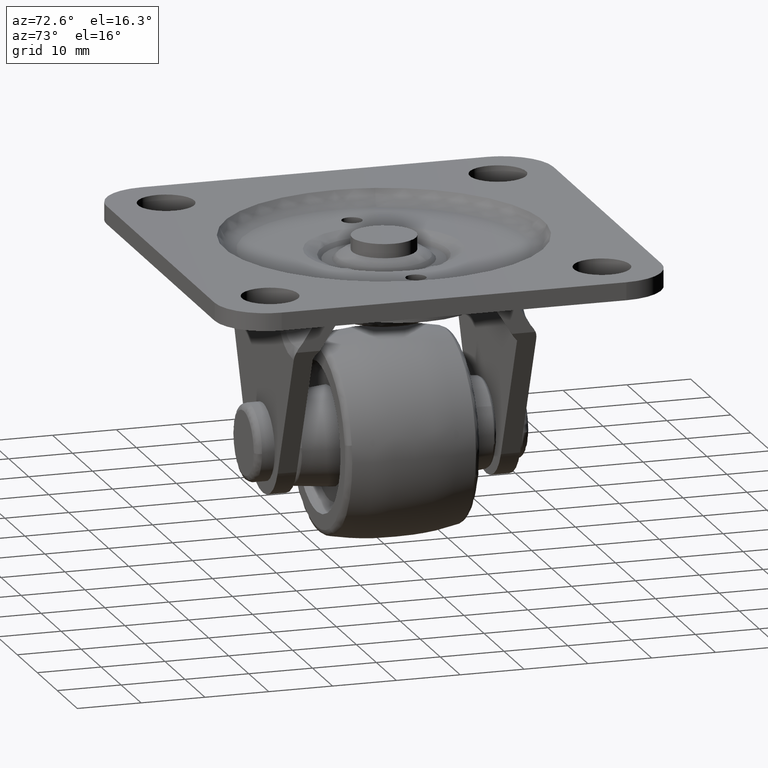
[diagram: clean part render]
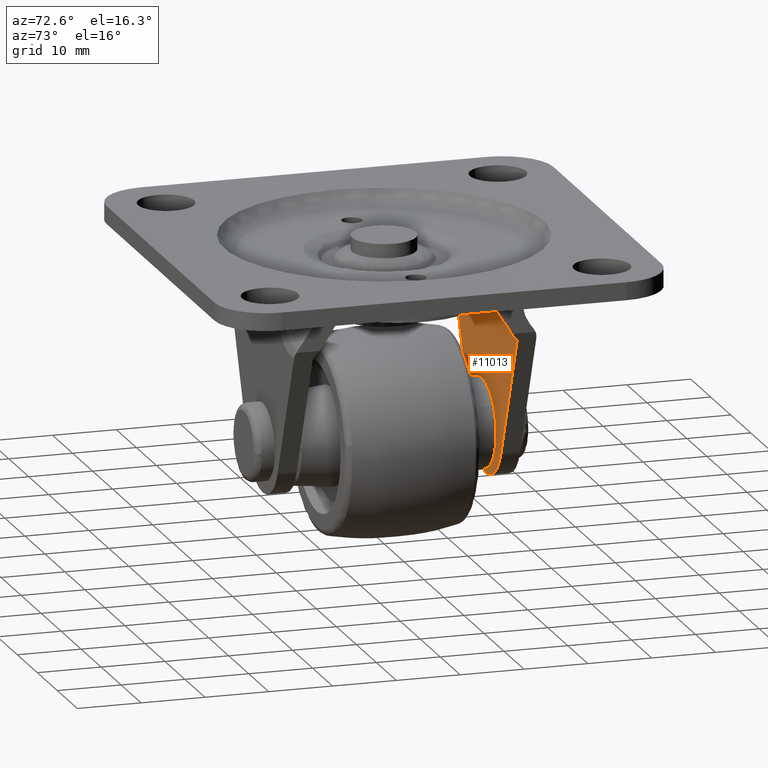
[diagram: same view with one face highlighted and labeled with its STEP entity id]
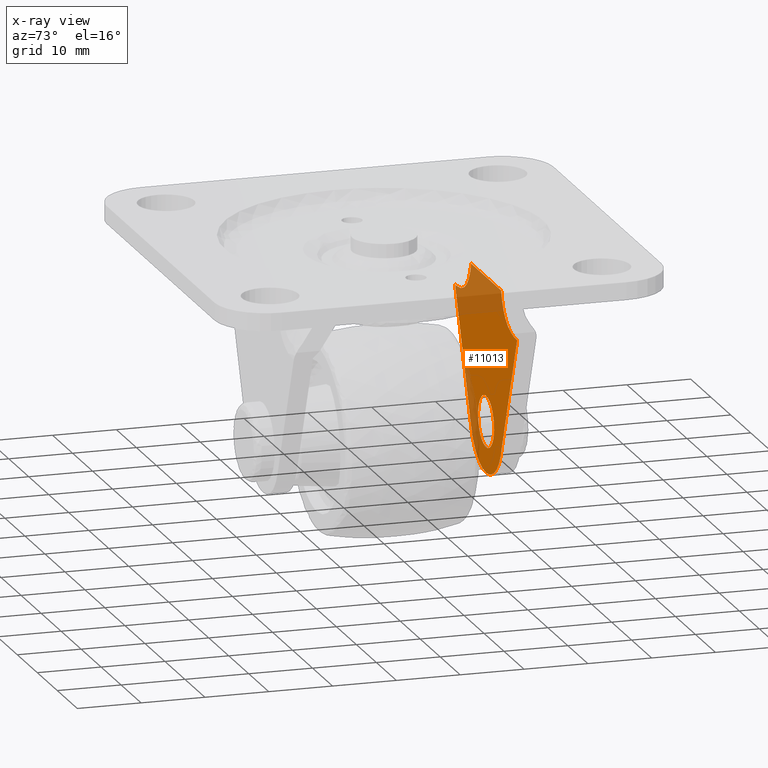
[diagram: x-ray of the same camera — body ghosted, the highlighted face saturated]
A machine part, auxiliary view. The second image highlights one B-rep face of the part: STEP entity #11013.
The next image is the same camera in x-ray: the body ghosted, the highlighted face saturated — about 29% of this face is hidden behind the body in this view.
In plain terms, the highlighted face is a freeform B-spline surface patch.
Its self-contained STEP definition (entity closure, byte-faithful):
#7461=CARTESIAN_POINT('',(-3.972038105444410,16.0,0.472136938713309));
#7462=VERTEX_POINT('',#7461);
#7463=CARTESIAN_POINT('',(0.0,16.0,-4.0));
#7464=VERTEX_POINT('',#7463);
#7465=CARTESIAN_POINT('',(-3.972038105444410,15.999999999999996,0.472136938713309));
#7466=CARTESIAN_POINT('',(-4.000000000000001,16.000000000000004,0.236896478694827));
#7467=CARTESIAN_POINT('',(-4.0,16.0,0.0));
#7468=CARTESIAN_POINT('',(-4.000000000000000,15.999999999999998,-4.000000000000000));
#7469=CARTESIAN_POINT('',(0.0,16.0,-4.0));
#7477=(BOUNDED_CURVE()B_SPLINE_CURVE(2,(#7465,#7466,#7467,#7468,#7469),.UNSPECIFIED.,.F.,.U.)B_SPLINE_CURVE_WITH_KNOTS((3,2,3),(0.229562473508303,0.250000000000000,0.500000000000000),.UNSPECIFIED.)CURVE()GEOMETRIC_REPRESENTATION_ITEM()RATIONAL_B_SPLINE_CURVE((0.956026754173496,0.976055948325046,1.0,0.707106781186548,1.0))REPRESENTATION_ITEM(''));
#7478=EDGE_CURVE('',#7462,#7464,#7477,.T.);
#7480=CARTESIAN_POINT('',(3.992539193682481,16.0,-0.244194158220941));
#7481=VERTEX_POINT('',#7480);
#7482=CARTESIAN_POINT('',(0.0,16.0,-4.0));
#7483=CARTESIAN_POINT('',(3.762824267468871,16.0,-4.0));
#7484=CARTESIAN_POINT('',(3.992539193682481,16.000000000000004,-0.244194158220941));
#7492=(BOUNDED_CURVE()B_SPLINE_CURVE(2,(#7482,#7483,#7484),.UNSPECIFIED.,.F.,.U.)B_SPLINE_CURVE_WITH_KNOTS((3,3),(0.500000000000000,0.739332962234924),.UNSPECIFIED.)CURVE()GEOMETRIC_REPRESENTATION_ITEM()RATIONAL_B_SPLINE_CURVE((1.0,0.719603993291419,0.976072041658104))REPRESENTATION_ITEM(''));
#7493=EDGE_CURVE('',#7464,#7481,#7492,.T.);
#7560=CARTESIAN_POINT('',(0.0,16.0,4.0));
#7561=VERTEX_POINT('',#7560);
#7562=CARTESIAN_POINT('',(0.0,16.0,4.0));
#7563=CARTESIAN_POINT('',(-3.552698103650050,15.999999999999995,4.0));
#7564=CARTESIAN_POINT('',(-3.972038105444411,15.999999999999998,0.472136938713309));
#7572=(BOUNDED_CURVE()B_SPLINE_CURVE(2,(#7562,#7563,#7564),.UNSPECIFIED.,.F.,.U.)B_SPLINE_CURVE_WITH_KNOTS((3,3),(0.0,0.229562473508303),.UNSPECIFIED.)CURVE()GEOMETRIC_REPRESENTATION_ITEM()RATIONAL_B_SPLINE_CURVE((1.0,0.731050832861502,0.956026754173496))REPRESENTATION_ITEM(''));
#7573=EDGE_CURVE('',#7561,#7462,#7572,.T.);
#7607=CARTESIAN_POINT('',(3.992539193682482,16.000000000000004,-0.244194158220941));
#7608=CARTESIAN_POINT('',(4.0,16.0,-0.122211053276097));
#7609=CARTESIAN_POINT('',(4.0,16.0,0.0));
#7610=CARTESIAN_POINT('',(4.000000000000000,15.999999999999998,4.000000000000000));
#7611=CARTESIAN_POINT('',(0.0,16.0,4.0));
#7619=(BOUNDED_CURVE()B_SPLINE_CURVE(2,(#7607,#7608,#7609,#7610,#7611),.UNSPECIFIED.,.F.,.U.)B_SPLINE_CURVE_WITH_KNOTS((3,2,3),(0.739332962234923,0.750000000000000,1.0),.UNSPECIFIED.)CURVE()GEOMETRIC_REPRESENTATION_ITEM()RATIONAL_B_SPLINE_CURVE((0.976072041658102,0.987502787895127,1.0,0.707106781186548,1.0))REPRESENTATION_ITEM(''));
#7620=EDGE_CURVE('',#7481,#7561,#7619,.T.);
#10332=CARTESIAN_POINT('',(15.504527354796251,16.0,16.976298295117900));
#10333=VERTEX_POINT('',#10332);
#10334=CARTESIAN_POINT('',(15.092947164662750,16.0,16.976298295117850));
#10335=VERTEX_POINT('',#10334);
#10336=CARTESIAN_POINT('',(15.504527354796251,16.0,16.976298295117900));
#10337=CARTESIAN_POINT('',(15.092947164662750,16.0,16.976298295117850));
#10338=QUASI_UNIFORM_CURVE('',1,(#10336,#10337),.UNSPECIFIED.,.F.,.U.);
#10339=EDGE_CURVE('',#10333,#10335,#10338,.T.);
#10392=CARTESIAN_POINT('',(7.486135151087449,16.0,22.500000000000000));
#10393=VERTEX_POINT('',#10392);
#10394=CARTESIAN_POINT('',(7.486135151087460,16.0,22.500000000000000));
#10395=CARTESIAN_POINT('',(7.535507063158343,16.0,22.291409247580180));
#10396=CARTESIAN_POINT('',(7.592496235097788,16.0,22.083097732946651));
#10397=CARTESIAN_POINT('',(7.721240407702836,16.0,21.674191497534832));
#10398=CARTESIAN_POINT('',(7.793058966299413,16.0,21.473118880234068));
#10399=CARTESIAN_POINT('',(8.032442065880206,16.0,20.880763442455660));
#10400=CARTESIAN_POINT('',(8.223758179453224,16.0,20.500263204332281));
#10401=CARTESIAN_POINT('',(8.510012810590409,16.0,20.046024362027669));
#10402=CARTESIAN_POINT('',(8.569816991512719,16.0,19.955995341174841));
#10403=CARTESIAN_POINT('',(8.693445748394572,16.0,19.779557265771320));
#10404=CARTESIAN_POINT('',(8.884589820889168,16.000000000000011,19.520709924267059));
#10405=CARTESIAN_POINT('',(9.092793510712905,16.0,19.279247878775760));
#10406=CARTESIAN_POINT('',(9.531977570891108,16.0,18.819535289292869));
#10407=CARTESIAN_POINT('',(9.855089449141982,16.0,18.543961609874330));
#10408=CARTESIAN_POINT('',(10.297715559355920,16.0,18.238970272294580));
#10409=CARTESIAN_POINT('',(10.388396168379160,16.0,18.179830992370199));
#10410=CARTESIAN_POINT('',(10.571590200783220,15.999999999999989,18.066772917114431));
#10411=CARTESIAN_POINT('',(10.664296113535251,16.0,18.012706298179420));
#10412=CARTESIAN_POINT('',(10.945602361511741,16.0,17.857586854725611));
#10413=CARTESIAN_POINT('',(11.137387581430410,16.0,17.763606393815120));
#10414=CARTESIAN_POINT('',(11.528815900141030,16.0,17.593094699177389));
#10415=CARTESIAN_POINT('',(11.728459909707590,16.0,17.516565487918701));
#10416=CARTESIAN_POINT('',(12.135075786006761,16.0,17.379779324940941));
#10417=CARTESIAN_POINT('',(12.342738441710670,16.0,17.319391694516341));
#10418=CARTESIAN_POINT('',(12.967371592124289,16.0,17.163071728236289));
#10419=CARTESIAN_POINT('',(13.387957872646220,16.0,17.090885439871968));
#10420=CARTESIAN_POINT('',(14.235754410652440,16.000000000000011,16.997458366603450));
#10421=CARTESIAN_POINT('',(14.662975162562910,16.0,16.976298295117850));
#10422=CARTESIAN_POINT('',(15.092947164662750,16.0,16.976298295117850));
#10423=B_SPLINE_CURVE_WITH_KNOTS('',3,(#10394,#10395,#10396,#10397,#10398,#10399,#10400,#10401,#10402,#10403,#10404,#10405,#10406,#10407,#10408,#10409,#10410,#10411,#10412,#10413,#10414,#10415,#10416,#10417,#10418,#10419,#10420,#10421,#10422),.UNSPECIFIED.,.F.,.U.,(4,2,2,2,2,1,2,2,2,2,2,2,2,2,4),(0.0,0.062500000000000,0.125000000000001,0.250000000000002,0.281250000000002,0.312500000000001,0.375000000000001,0.500000000000000,0.531250000000000,0.562500000000000,0.625000000000000,0.687500000000000,0.750000000000000,0.875000000000000,1.0),.UNSPECIFIED.);
#10424=EDGE_CURVE('',#10393,#10335,#10423,.T.);
#10483=CARTESIAN_POINT('',(-15.504527354796149,16.0,16.976298295117900));
#10484=VERTEX_POINT('',#10483);
#10498=CARTESIAN_POINT('',(-15.092947164662750,16.0,16.976298295117850));
#10499=VERTEX_POINT('',#10498);
#10500=CARTESIAN_POINT('',(-15.092947164662750,16.0,16.976298295117850));
#10501=CARTESIAN_POINT('',(-15.504527354796149,16.0,16.976298295117900));
#10502=QUASI_UNIFORM_CURVE('',1,(#10500,#10501),.UNSPECIFIED.,.F.,.U.);
#10503=EDGE_CURVE('',#10499,#10484,#10502,.T.);
#10542=CARTESIAN_POINT('',(-7.486135151087480,16.0,22.500000000000000));
#10543=VERTEX_POINT('',#10542);
#10544=CARTESIAN_POINT('',(-15.092947164662750,16.0,16.976298295117850));
#10545=CARTESIAN_POINT('',(-14.662696417204570,16.000000000000011,16.976298295117850));
#10546=CARTESIAN_POINT('',(-14.235063167835619,16.0,16.997482981117209));
#10547=CARTESIAN_POINT('',(-13.386133352393021,16.0,17.091138215153329));
#10548=CARTESIAN_POINT('',(-12.964826441223140,16.0,17.163525035291340));
#10549=CARTESIAN_POINT('',(-12.443171585246111,16.0,17.294304274388580));
#10550=CARTESIAN_POINT('',(-12.338904736234600,16.0,17.322550903486370));
#10551=CARTESIAN_POINT('',(-12.132570013533179,16.0,17.382867914714051));
#10552=CARTESIAN_POINT('',(-12.030352531512190,16.0,17.414968229348819));
#10553=CARTESIAN_POINT('',(-11.726631790287390,16.0,17.517262367044491));
#10554=CARTESIAN_POINT('',(-11.528057596085530,16.0,17.593443987360970));
#10555=CARTESIAN_POINT('',(-10.944796685973150,16.0,17.847463861089349));
#10556=CARTESIAN_POINT('',(-10.572509178891609,16.0,18.050649434737650));
#10557=CARTESIAN_POINT('',(-10.131080394222010,16.0,18.353551987723311));
#10558=CARTESIAN_POINT('',(-10.043996054410551,16.0,18.416588518294009));
#10559=CARTESIAN_POINT('',(-9.915248954381026,16.0,18.514985333416458));
#10560=CARTESIAN_POINT('',(-9.872615821171159,16.0,18.548452818821929));
#10561=CARTESIAN_POINT('',(-9.788565833060842,16.0,18.616220090490991));
#10562=CARTESIAN_POINT('',(-9.581126927932015,16.000000000000011,18.787984174637710));
#10563=CARTESIAN_POINT('',(-9.386982736750266,16.0,18.971359345586450));
#10564=CARTESIAN_POINT('',(-8.945759325101138,16.0,19.433051555702608));
#10565=CARTESIAN_POINT('',(-8.684513054467724,16.0,19.769582276910121));
#10566=CARTESIAN_POINT('',(-8.397365194546195,16.0,20.224664822866242));
#10567=CARTESIAN_POINT('',(-8.341771524939754,16.0,20.317666483050310));
#10568=CARTESIAN_POINT('',(-8.235498989156355,16.0,20.505299231144019));
#10569=CARTESIAN_POINT('',(-8.184746760843199,16.0,20.600016183550508));
#10570=CARTESIAN_POINT('',(-8.039267889840401,16.0,20.886727381047820));
#10571=CARTESIAN_POINT('',(-7.951307134585219,16.0,21.081277461143230));
#10572=CARTESIAN_POINT('',(-7.712001872317822,16.0,21.674211740878381));
#10573=CARTESIAN_POINT('',(-7.585112051503138,16.0,22.081833774226610));
#10574=CARTESIAN_POINT('',(-7.486135151087480,16.0,22.500000000000000));
#10575=B_SPLINE_CURVE_WITH_KNOTS('',3,(#10544,#10545,#10546,#10547,#10548,#10549,#10550,#10551,#10552,#10553,#10554,#10555,#10556,#10557,#10558,#10559,#10560,#10561,#10562,#10563,#10564,#10565,#10566,#10567,#10568,#10569,#10570,#10571,#10572,#10573,#10574),.UNSPECIFIED.,.F.,.U.,(4,2,2,2,2,2,2,2,2,1,2,2,2,2,2,4),(0.0,0.125000000000000,0.249999999999999,0.281249999999999,0.312499999999999,0.374999999999999,0.499999999999999,0.531249999999999,0.546874999999999,0.562499999999999,0.624999999999998,0.749999999999998,0.781249999999998,0.812499999999998,0.874999999999998,1.0),.UNSPECIFIED.);
#10576=EDGE_CURVE('',#10499,#10543,#10575,.T.);
#10962=CARTESIAN_POINT('',(-17.053429286347900,16.0,24.023474940885080));
#10963=CARTESIAN_POINT('',(17.053430395318220,16.0,24.023474940885080));
#10964=CARTESIAN_POINT('',(-17.053429286347900,16.0,-9.523475758958789));
#10965=CARTESIAN_POINT('',(17.053430395318220,16.0,-9.523475758958789));
#10966=B_SPLINE_SURFACE_WITH_KNOTS('',1,1,((#10962,#10964),(#10963,#10965)),.UNSPECIFIED.,.F.,.F.,.U.,(2,2),(2,2),(0.0,34.106859681666123),(0.0,33.546950699843883),.UNSPECIFIED.);
#10967=ORIENTED_EDGE('',*,*,#10339,.T.);
#10968=ORIENTED_EDGE('',*,*,#10424,.F.);
#10969=CARTESIAN_POINT('',(7.486135151087449,16.0,22.500000000000000));
#10970=CARTESIAN_POINT('',(-7.486135151087480,16.0,22.500000000000000));
#10971=QUASI_UNIFORM_CURVE('',1,(#10969,#10970),.UNSPECIFIED.,.F.,.U.);
#10972=EDGE_CURVE('',#10393,#10543,#10971,.T.);
#10973=ORIENTED_EDGE('',*,*,#10972,.T.);
#10974=ORIENTED_EDGE('',*,*,#10576,.F.);
#10975=ORIENTED_EDGE('',*,*,#10503,.T.);
#10976=CARTESIAN_POINT('',(-7.415227999999901,16.0,-3.002398000000000));
#10977=VERTEX_POINT('',#10976);
#10978=CARTESIAN_POINT('',(-15.504527354796149,16.0,16.976298295117900));
#10979=CARTESIAN_POINT('',(-7.415227999999901,16.0,-3.002398000000000));
#10980=QUASI_UNIFORM_CURVE('',1,(#10978,#10979),.UNSPECIFIED.,.F.,.U.);
#10981=EDGE_CURVE('',#10484,#10977,#10980,.T.);
#10982=ORIENTED_EDGE('',*,*,#10981,.T.);
#10983=CARTESIAN_POINT('',(7.415228071805180,16.0,-3.002397815598800));
#10984=VERTEX_POINT('',#10983);
#10985=CARTESIAN_POINT('',(-7.415227999999901,16.0,-3.002398000000000));
#10986=CARTESIAN_POINT('',(-5.391717668154937,16.0,-8.000000066678906));
#10987=CARTESIAN_POINT('',(0.000000098935309,16.0,-7.999999999999998));
#10988=CARTESIAN_POINT('',(5.391717866025554,16.0,-7.999999933321091));
#10989=CARTESIAN_POINT('',(7.415228071805179,16.0,-3.002397815598801));
#10997=(BOUNDED_CURVE()B_SPLINE_CURVE(2,(#10985,#10986,#10987,#10988,#10989),.UNSPECIFIED.,.F.,.U.)B_SPLINE_CURVE_WITH_KNOTS((3,2,3),(0.0,0.500000000000000,1.0),.UNSPECIFIED.)CURVE()GEOMETRIC_REPRESENTATION_ITEM()RATIONAL_B_SPLINE_CURVE((1.0,0.829246567196026,1.0,0.829246567196026,1.0))REPRESENTATION_ITEM(''));
#10998=EDGE_CURVE('',#10977,#10984,#10997,.T.);
#10999=ORIENTED_EDGE('',*,*,#10998,.T.);
#11000=CARTESIAN_POINT('',(7.415228071805180,16.0,-3.002397815598800));
#11001=CARTESIAN_POINT('',(15.504527354796251,16.0,16.976298295117900));
#11002=QUASI_UNIFORM_CURVE('',1,(#11000,#11001),.UNSPECIFIED.,.F.,.U.);
#11003=EDGE_CURVE('',#10984,#10333,#11002,.T.);
#11004=ORIENTED_EDGE('',*,*,#11003,.T.);
#11005=EDGE_LOOP('',(#10967,#10968,#10973,#10974,#10975,#10982,#10999,#11004));
#11006=FACE_OUTER_BOUND('',#11005,.T.);
#11007=ORIENTED_EDGE('',*,*,#7493,.F.);
#11008=ORIENTED_EDGE('',*,*,#7478,.F.);
#11009=ORIENTED_EDGE('',*,*,#7573,.F.);
#11010=ORIENTED_EDGE('',*,*,#7620,.F.);
#11011=EDGE_LOOP('',(#11007,#11008,#11009,#11010));
#11012=FACE_BOUND('',#11011,.T.);
#11013=ADVANCED_FACE('',(#11006,#11012),#10966,.F.);